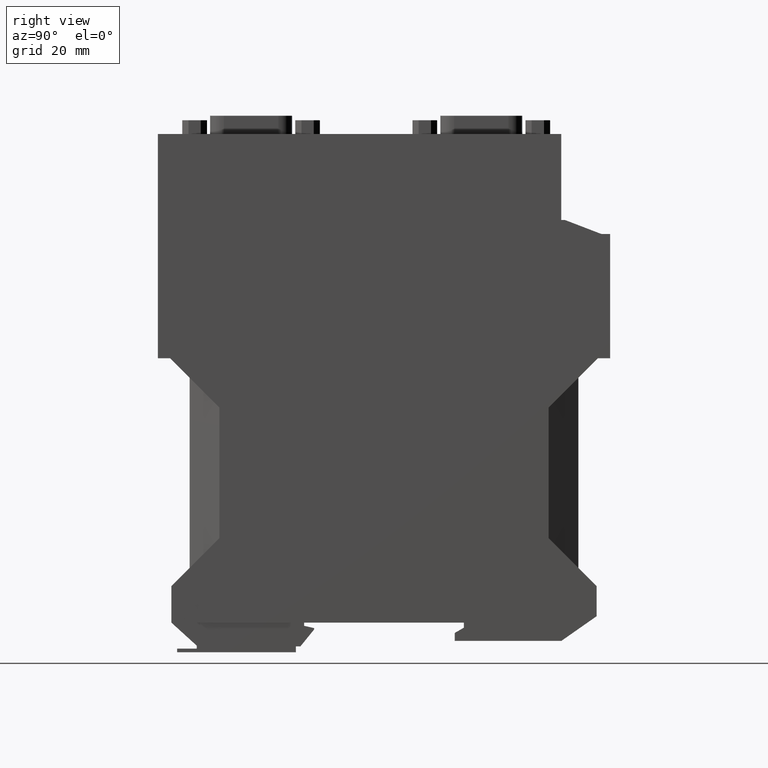
[diagram: clean part render]
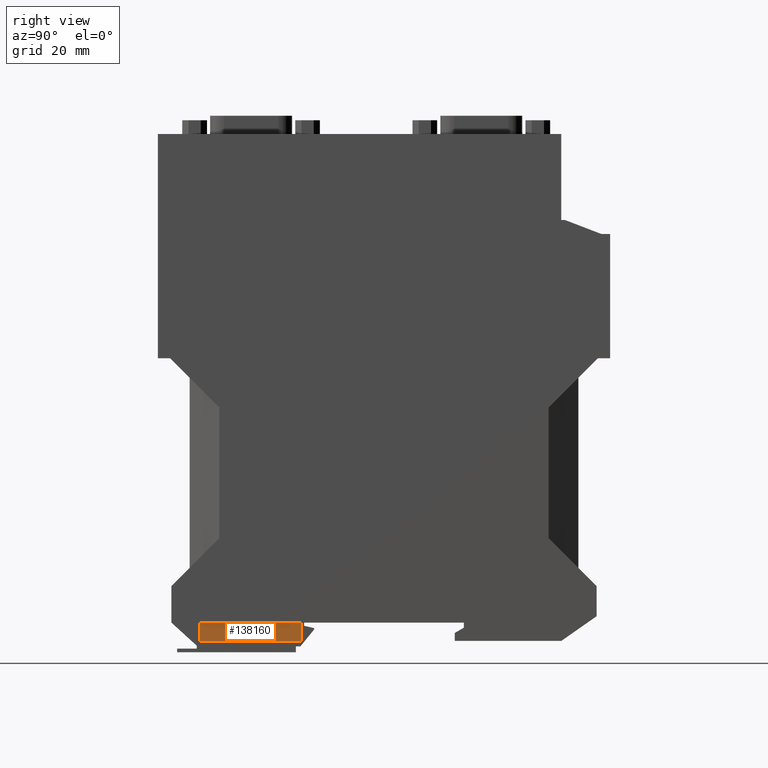
[diagram: same view with one face highlighted and labeled with its STEP entity id]
A machine part, right view. The second image highlights one B-rep face of the part: STEP entity #138160.
In plain terms, the highlighted planar face has unit normal (-1, -0, -0).
Its self-contained STEP definition (entity closure, byte-faithful):
#129950=CARTESIAN_POINT('',(-35.5000000000032,1.4210854715202E-13,30.35)
);
#129960=VERTEX_POINT('',#129950);
#129990=CARTESIAN_POINT('',(24.,-7.14095449438901E-13,30.35));
#130000=DIRECTION('',(-1.,1.44E-14,1.11022302462516E-16));
#130010=VECTOR('',#130000,1.);
#130020=LINE('',#129990,#130010);
#130030=CARTESIAN_POINT('',(-57.7800000000131,4.61852778244065E-13,30.35
));
#130040=VERTEX_POINT('',#130030);
#130050=EDGE_CURVE('',#129960,#130040,#130020,.T.);
#137860=CARTESIAN_POINT('',(-47.1000000000469,-2.00000000001187,30.35));
#137870=DIRECTION('',(-1.11022302462516E-16,-4.28271727325324E-29,-1.));
#137880=DIRECTION('',(2.57227741224401E-13,-1.,1.42691566445673E-29));
#137890=AXIS2_PLACEMENT_3D('',#137860,#137870,#137880);
#137900=PLANE('',#137890);
#137910=ORIENTED_EDGE('',*,*,#130050,.T.);
#137920=CARTESIAN_POINT('',(-35.4999999999995,-8.00000000000926,30.35));
#137930=DIRECTION('',(-2.35927741224401E-13,1.,-1.66339316870189E-29));
#137940=VECTOR('',#137930,1.);
#137950=LINE('',#137920,#137940);
#137960=CARTESIAN_POINT('',(-35.5000000000032,-4.00000000000057,30.35));
#137970=VERTEX_POINT('',#137960);
#137980=EDGE_CURVE('',#137970,#129960,#137950,.T.);
#137990=ORIENTED_EDGE('',*,*,#137980,.T.);
#138000=CARTESIAN_POINT('',(-22.8499999999426,-4.00000000000057,30.35));
#138010=DIRECTION('',(1.,1.24460305557223E-60,-1.11022302462516E-16));
#138020=VECTOR('',#138010,1.);
#138030=LINE('',#138000,#138020);
#138040=CARTESIAN_POINT('',(-57.7800000000131,-4.00000000000057,30.35));
#138050=VERTEX_POINT('',#138040);
#138060=EDGE_CURVE('',#138050,#137970,#138030,.T.);
#138070=ORIENTED_EDGE('',*,*,#138060,.T.);
#138080=CARTESIAN_POINT('',(-57.7800000000131,53.499999999988,30.35));
#138090=DIRECTION('',(3.67502890521163E-46,-1.,4.28271727325325E-29));
#138100=VECTOR('',#138090,1.);
#138110=LINE('',#138080,#138100);
#138120=EDGE_CURVE('',#130040,#138050,#138110,.T.);
#138130=ORIENTED_EDGE('',*,*,#138120,.T.);
#138140=EDGE_LOOP('',(#138130,#138070,#137990,#137910));
#138150=FACE_OUTER_BOUND('',#138140,.T.);
#138160=ADVANCED_FACE('',(#138150),#137900,.F.);